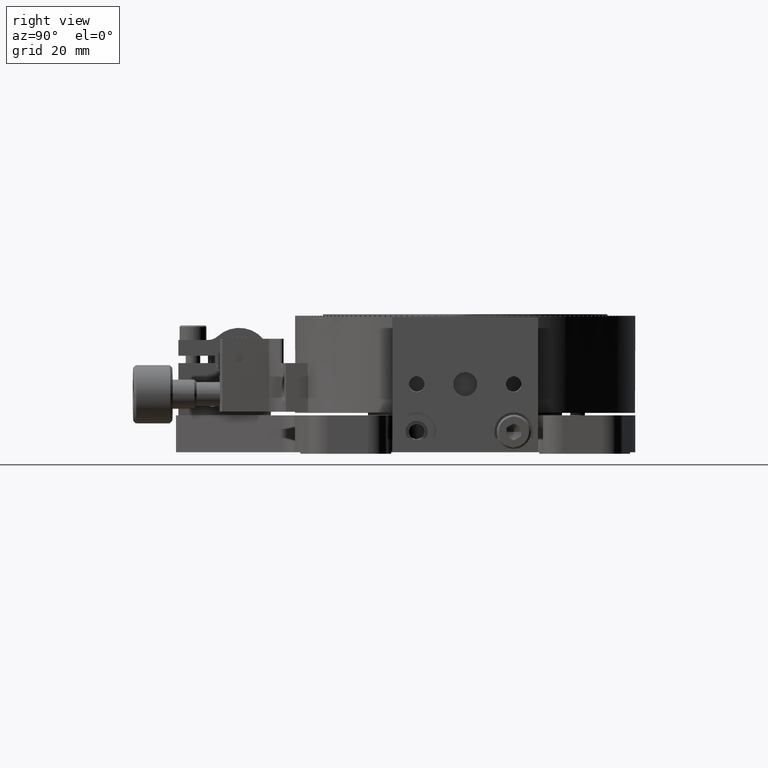
[diagram: clean part render]
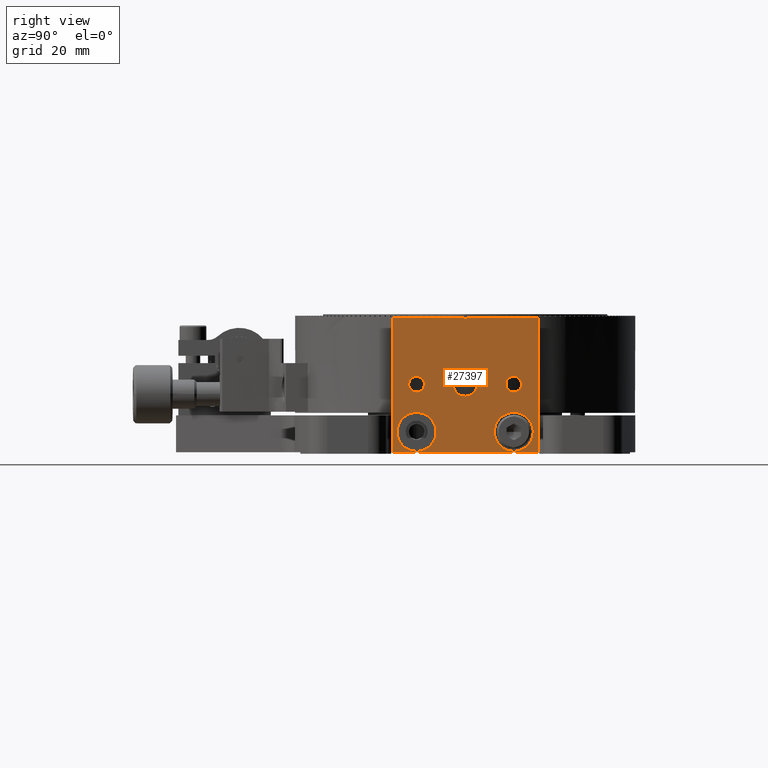
[diagram: same view with one face highlighted and labeled with its STEP entity id]
A machine part, right view. The second image highlights one B-rep face of the part: STEP entity #27397.
In plain terms, the highlighted face is a freeform B-spline surface patch.
Its self-contained STEP definition (entity closure, byte-faithful):
#613=FACE_BOUND('',#32128,.T.);
#614=FACE_BOUND('',#32129,.T.);
#615=FACE_BOUND('',#32130,.T.);
#616=FACE_BOUND('',#32131,.T.);
#617=FACE_BOUND('',#32132,.T.);
#2499=(
BOUNDED_CURVE()
B_SPLINE_CURVE(2,(#160805,#160806,#160807,#160808,#160809),
 .UNSPECIFIED.,.F.,.F.)
B_SPLINE_CURVE_WITH_KNOTS((3,2,3),(0.,3.86180276942525,7.72360553885051),
 .UNSPECIFIED.)
CURVE()
GEOMETRIC_REPRESENTATION_ITEM()
RATIONAL_B_SPLINE_CURVE((1.,0.707106781186548,1.,0.707106781186548,1.))
REPRESENTATION_ITEM('')
);
#2500=(
BOUNDED_CURVE()
B_SPLINE_CURVE(2,(#160810,#160811,#160812,#160813,#160814),
 .UNSPECIFIED.,.F.,.F.)
B_SPLINE_CURVE_WITH_KNOTS((3,2,3),(0.,3.86180276942525,7.72360553885051),
 .UNSPECIFIED.)
CURVE()
GEOMETRIC_REPRESENTATION_ITEM()
RATIONAL_B_SPLINE_CURVE((1.,0.707106781186548,1.,0.707106781186548,1.))
REPRESENTATION_ITEM('')
);
#2501=(
BOUNDED_CURVE()
B_SPLINE_CURVE(2,(#160815,#160816,#160817,#160818,#160819),
 .UNSPECIFIED.,.F.,.F.)
B_SPLINE_CURVE_WITH_KNOTS((3,2,3),(0.,3.86180276942525,7.72360553885051),
 .UNSPECIFIED.)
CURVE()
GEOMETRIC_REPRESENTATION_ITEM()
RATIONAL_B_SPLINE_CURVE((1.,0.707106781186548,1.,0.707106781186548,1.))
REPRESENTATION_ITEM('')
);
#2502=(
BOUNDED_CURVE()
B_SPLINE_CURVE(2,(#160820,#160821,#160822,#160823,#160824),
 .UNSPECIFIED.,.F.,.F.)
B_SPLINE_CURVE_WITH_KNOTS((3,2,3),(0.,3.86180276942525,7.72360553885051),
 .UNSPECIFIED.)
CURVE()
GEOMETRIC_REPRESENTATION_ITEM()
RATIONAL_B_SPLINE_CURVE((1.,0.707106781186548,1.,0.707106781186548,1.))
REPRESENTATION_ITEM('')
);
#2503=(
BOUNDED_CURVE()
B_SPLINE_CURVE(2,(#160825,#160826,#160827,#160828,#160829),
 .UNSPECIFIED.,.F.,.F.)
B_SPLINE_CURVE_WITH_KNOTS((3,2,3),(0.,2.54626114927251,5.09252169146906),
 .UNSPECIFIED.)
CURVE()
GEOMETRIC_REPRESENTATION_ITEM()
RATIONAL_B_SPLINE_CURVE((1.,0.707106781186548,1.,0.707106900395835,1.))
REPRESENTATION_ITEM('')
);
#2504=(
BOUNDED_CURVE()
B_SPLINE_CURVE(2,(#160830,#160831,#160832,#160833,#160834),
 .UNSPECIFIED.,.F.,.F.)
B_SPLINE_CURVE_WITH_KNOTS((3,2,3),(0.,2.54626114927251,5.09252169146906),
 .UNSPECIFIED.)
CURVE()
GEOMETRIC_REPRESENTATION_ITEM()
RATIONAL_B_SPLINE_CURVE((1.,0.707106781186548,1.,0.707106900395835,1.))
REPRESENTATION_ITEM('')
);
#2505=(
BOUNDED_CURVE()
B_SPLINE_CURVE(2,(#160835,#160836,#160837,#160838,#160839),
 .UNSPECIFIED.,.F.,.F.)
B_SPLINE_CURVE_WITH_KNOTS((3,2,3),(0.,2.54626054219655,5.09252169146906),
 .UNSPECIFIED.)
CURVE()
GEOMETRIC_REPRESENTATION_ITEM()
RATIONAL_B_SPLINE_CURVE((1.,0.707106900395835,1.,0.707106781186548,1.))
REPRESENTATION_ITEM('')
);
#2506=(
BOUNDED_CURVE()
B_SPLINE_CURVE(2,(#160840,#160841,#160842,#160843,#160844),
 .UNSPECIFIED.,.F.,.F.)
B_SPLINE_CURVE_WITH_KNOTS((3,2,3),(0.,2.54626054219655,5.09252169146906),
 .UNSPECIFIED.)
CURVE()
GEOMETRIC_REPRESENTATION_ITEM()
RATIONAL_B_SPLINE_CURVE((1.,0.707106900395835,1.,0.707106781186548,1.))
REPRESENTATION_ITEM('')
);
#2507=(
BOUNDED_CURVE()
B_SPLINE_CURVE(2,(#160845,#160846,#160847,#160848,#160849),
 .UNSPECIFIED.,.F.,.F.)
B_SPLINE_CURVE_WITH_KNOTS((3,2,3),(0.,2.54626084573453,5.09252169146906),
 .UNSPECIFIED.)
CURVE()
GEOMETRIC_REPRESENTATION_ITEM()
RATIONAL_B_SPLINE_CURVE((1.,0.707106781186548,1.,0.707106781186548,1.))
REPRESENTATION_ITEM('')
);
#2508=(
BOUNDED_CURVE()
B_SPLINE_CURVE(2,(#160850,#160851,#160852,#160853,#160854),
 .UNSPECIFIED.,.F.,.F.)
B_SPLINE_CURVE_WITH_KNOTS((3,2,3),(0.,2.54626084573453,5.09252169146906),
 .UNSPECIFIED.)
CURVE()
GEOMETRIC_REPRESENTATION_ITEM()
RATIONAL_B_SPLINE_CURVE((1.,0.707106781186548,1.,0.707106781186548,1.))
REPRESENTATION_ITEM('')
);
#2509=(
BOUNDED_CURVE()
B_SPLINE_CURVE(2,(#160855,#160856,#160857,#160858,#160859),
 .UNSPECIFIED.,.F.,.F.)
B_SPLINE_CURVE_WITH_KNOTS((3,2,3),(0.,2.54626084573453,5.09252169146906),
 .UNSPECIFIED.)
CURVE()
GEOMETRIC_REPRESENTATION_ITEM()
RATIONAL_B_SPLINE_CURVE((1.,0.707106781186548,1.,0.707106781186548,1.))
REPRESENTATION_ITEM('')
);
#2510=(
BOUNDED_CURVE()
B_SPLINE_CURVE(2,(#160860,#160861,#160862,#160863,#160864),
 .UNSPECIFIED.,.F.,.F.)
B_SPLINE_CURVE_WITH_KNOTS((3,2,3),(0.,2.54626084573453,5.09252169146906),
 .UNSPECIFIED.)
CURVE()
GEOMETRIC_REPRESENTATION_ITEM()
RATIONAL_B_SPLINE_CURVE((1.,0.707106781186548,1.,0.707106781186548,1.))
REPRESENTATION_ITEM('')
);
#2511=(
BOUNDED_CURVE()
B_SPLINE_CURVE(2,(#160865,#160866,#160867,#160868,#160869),
 .UNSPECIFIED.,.F.,.F.)
B_SPLINE_CURVE_WITH_KNOTS((3,2,3),(0.,6.28318530717959,12.5663706143592),
 .UNSPECIFIED.)
CURVE()
GEOMETRIC_REPRESENTATION_ITEM()
RATIONAL_B_SPLINE_CURVE((1.,0.707106781186548,1.,0.707106781186548,1.))
REPRESENTATION_ITEM('')
);
#2512=(
BOUNDED_CURVE()
B_SPLINE_CURVE(2,(#160870,#160871,#160872,#160873,#160874),
 .UNSPECIFIED.,.F.,.F.)
B_SPLINE_CURVE_WITH_KNOTS((3,2,3),(0.,6.28318530717959,12.5663706143592),
 .UNSPECIFIED.)
CURVE()
GEOMETRIC_REPRESENTATION_ITEM()
RATIONAL_B_SPLINE_CURVE((1.,0.707106781186548,1.,0.707106781186548,1.))
REPRESENTATION_ITEM('')
);
#2513=(
BOUNDED_CURVE()
B_SPLINE_CURVE(2,(#160875,#160876,#160877,#160878,#160879),
 .UNSPECIFIED.,.F.,.F.)
B_SPLINE_CURVE_WITH_KNOTS((3,2,3),(0.,6.28318530717959,12.5663706143592),
 .UNSPECIFIED.)
CURVE()
GEOMETRIC_REPRESENTATION_ITEM()
RATIONAL_B_SPLINE_CURVE((1.,0.707106781186548,1.,0.707106781186548,1.))
REPRESENTATION_ITEM('')
);
#2514=(
BOUNDED_CURVE()
B_SPLINE_CURVE(2,(#160880,#160881,#160882,#160883,#160884),
 .UNSPECIFIED.,.F.,.F.)
B_SPLINE_CURVE_WITH_KNOTS((3,2,3),(0.,6.28318530717959,12.5663706143592),
 .UNSPECIFIED.)
CURVE()
GEOMETRIC_REPRESENTATION_ITEM()
RATIONAL_B_SPLINE_CURVE((1.,0.707106781186548,1.,0.707106781186548,1.))
REPRESENTATION_ITEM('')
);
#2515=(
BOUNDED_CURVE()
B_SPLINE_CURVE(2,(#160885,#160886,#160887,#160888,#160889),
 .UNSPECIFIED.,.F.,.F.)
B_SPLINE_CURVE_WITH_KNOTS((3,2,3),(0.,6.28318605619373,12.5663706143592),
 .UNSPECIFIED.)
CURVE()
GEOMETRIC_REPRESENTATION_ITEM()
RATIONAL_B_SPLINE_CURVE((1.,0.707106781186548,1.,0.707106900395835,1.))
REPRESENTATION_ITEM('')
);
#2516=(
BOUNDED_CURVE()
B_SPLINE_CURVE(2,(#160890,#160891,#160892,#160893,#160894),
 .UNSPECIFIED.,.F.,.F.)
B_SPLINE_CURVE_WITH_KNOTS((3,2,3),(0.,6.28318605619373,12.5663706143592),
 .UNSPECIFIED.)
CURVE()
GEOMETRIC_REPRESENTATION_ITEM()
RATIONAL_B_SPLINE_CURVE((1.,0.707106781186548,1.,0.707106900395835,1.))
REPRESENTATION_ITEM('')
);
#2517=(
BOUNDED_CURVE()
B_SPLINE_CURVE(2,(#160895,#160896,#160897,#160898,#160899),
 .UNSPECIFIED.,.F.,.F.)
B_SPLINE_CURVE_WITH_KNOTS((3,2,3),(0.,6.28318455816544,12.5663706143592),
 .UNSPECIFIED.)
CURVE()
GEOMETRIC_REPRESENTATION_ITEM()
RATIONAL_B_SPLINE_CURVE((1.,0.707106900395835,1.,0.707106781186548,1.))
REPRESENTATION_ITEM('')
);
#2518=(
BOUNDED_CURVE()
B_SPLINE_CURVE(2,(#160900,#160901,#160902,#160903,#160904),
 .UNSPECIFIED.,.F.,.F.)
B_SPLINE_CURVE_WITH_KNOTS((3,2,3),(0.,6.28318455816544,12.5663706143592),
 .UNSPECIFIED.)
CURVE()
GEOMETRIC_REPRESENTATION_ITEM()
RATIONAL_B_SPLINE_CURVE((1.,0.707106900395835,1.,0.707106781186548,1.))
REPRESENTATION_ITEM('')
);
#27397=ADVANCED_FACE('',(#29727,#613,#614,#615,#616,#617),#129705,.T.);
#29727=FACE_OUTER_BOUND('',#32127,.T.);
#32127=EDGE_LOOP('',(#37175,#37176,#37177,#37178,#37179,#37180,#37181,#37182));
#32128=EDGE_LOOP('',(#37183,#37184));
#32129=EDGE_LOOP('',(#37185,#37186));
#32130=EDGE_LOOP('',(#37187,#37188));
#32131=EDGE_LOOP('',(#37189,#37190));
#32132=EDGE_LOOP('',(#37191,#37192));
#37175=ORIENTED_EDGE('',*,*,#86897,.T.);
#37176=ORIENTED_EDGE('',*,*,#86898,.T.);
#37177=ORIENTED_EDGE('',*,*,#86899,.T.);
#37178=ORIENTED_EDGE('',*,*,#86900,.T.);
#37179=ORIENTED_EDGE('',*,*,#86901,.T.);
#37180=ORIENTED_EDGE('',*,*,#86902,.T.);
#37181=ORIENTED_EDGE('',*,*,#86903,.T.);
#37182=ORIENTED_EDGE('',*,*,#86904,.T.);
#37183=ORIENTED_EDGE('',*,*,#86905,.T.);
#37184=ORIENTED_EDGE('',*,*,#86906,.T.);
#37185=ORIENTED_EDGE('',*,*,#86907,.T.);
#37186=ORIENTED_EDGE('',*,*,#86908,.T.);
#37187=ORIENTED_EDGE('',*,*,#86909,.T.);
#37188=ORIENTED_EDGE('',*,*,#86910,.T.);
#37189=ORIENTED_EDGE('',*,*,#86911,.T.);
#37190=ORIENTED_EDGE('',*,*,#86912,.T.);
#37191=ORIENTED_EDGE('',*,*,#86913,.T.);
#37192=ORIENTED_EDGE('',*,*,#86914,.T.);
#49849=PCURVE('',#129705,#62523);
#49850=PCURVE('',#129705,#62524);
#49851=PCURVE('',#129705,#62525);
#49852=PCURVE('',#129705,#62526);
#49853=PCURVE('',#129705,#62527);
#49854=PCURVE('',#129705,#62528);
#49855=PCURVE('',#129705,#62529);
#49856=PCURVE('',#129705,#62530);
#49857=PCURVE('',#129705,#62531);
#49858=PCURVE('',#129705,#62532);
#49859=PCURVE('',#129705,#62533);
#49860=PCURVE('',#129705,#62534);
#49861=PCURVE('',#129705,#62535);
#49862=PCURVE('',#129705,#62536);
#49863=PCURVE('',#129705,#62537);
#49864=PCURVE('',#129705,#62538);
#49865=PCURVE('',#129705,#62539);
#49866=PCURVE('',#129705,#62540);
#62523=DEFINITIONAL_REPRESENTATION('',(#100299),#230981);
#62524=DEFINITIONAL_REPRESENTATION('',(#100301),#230981);
#62525=DEFINITIONAL_REPRESENTATION('',(#100303),#230981);
#62526=DEFINITIONAL_REPRESENTATION('',(#100305),#230981);
#62527=DEFINITIONAL_REPRESENTATION('',(#100307),#230981);
#62528=DEFINITIONAL_REPRESENTATION('',(#100309),#230981);
#62529=DEFINITIONAL_REPRESENTATION('',(#100311),#230981);
#62530=DEFINITIONAL_REPRESENTATION('',(#100313),#230981);
#62531=DEFINITIONAL_REPRESENTATION('',(#2500),#230981);
#62532=DEFINITIONAL_REPRESENTATION('',(#2502),#230981);
#62533=DEFINITIONAL_REPRESENTATION('',(#2504),#230981);
#62534=DEFINITIONAL_REPRESENTATION('',(#2506),#230981);
#62535=DEFINITIONAL_REPRESENTATION('',(#2508),#230981);
#62536=DEFINITIONAL_REPRESENTATION('',(#2510),#230981);
#62537=DEFINITIONAL_REPRESENTATION('',(#2512),#230981);
#62538=DEFINITIONAL_REPRESENTATION('',(#2514),#230981);
#62539=DEFINITIONAL_REPRESENTATION('',(#2516),#230981);
#62540=DEFINITIONAL_REPRESENTATION('',(#2518),#230981);
#74797=SURFACE_CURVE('',#100298,(#49849),.PCURVE_S1.);
#74798=SURFACE_CURVE('',#100300,(#49850),.PCURVE_S1.);
#74799=SURFACE_CURVE('',#100302,(#49851),.PCURVE_S1.);
#74800=SURFACE_CURVE('',#100304,(#49852),.PCURVE_S1.);
#74801=SURFACE_CURVE('',#100306,(#49853),.PCURVE_S1.);
#74802=SURFACE_CURVE('',#100308,(#49854),.PCURVE_S1.);
#74803=SURFACE_CURVE('',#100310,(#49855),.PCURVE_S1.);
#74804=SURFACE_CURVE('',#100312,(#49856),.PCURVE_S1.);
#74805=SURFACE_CURVE('',#2499,(#49857),.PCURVE_S1.);
#74806=SURFACE_CURVE('',#2501,(#49858),.PCURVE_S1.);
#74807=SURFACE_CURVE('',#2503,(#49859),.PCURVE_S1.);
#74808=SURFACE_CURVE('',#2505,(#49860),.PCURVE_S1.);
#74809=SURFACE_CURVE('',#2507,(#49861),.PCURVE_S1.);
#74810=SURFACE_CURVE('',#2509,(#49862),.PCURVE_S1.);
#74811=SURFACE_CURVE('',#2511,(#49863),.PCURVE_S1.);
#74812=SURFACE_CURVE('',#2513,(#49864),.PCURVE_S1.);
#74813=SURFACE_CURVE('',#2515,(#49865),.PCURVE_S1.);
#74814=SURFACE_CURVE('',#2517,(#49866),.PCURVE_S1.);
#86897=EDGE_CURVE('',#120244,#120245,#74797,.T.);
#86898=EDGE_CURVE('',#120245,#120246,#74798,.T.);
#86899=EDGE_CURVE('',#120246,#120247,#74799,.T.);
#86900=EDGE_CURVE('',#120247,#120248,#74800,.T.);
#86901=EDGE_CURVE('',#120248,#120249,#74801,.T.);
#86902=EDGE_CURVE('',#120249,#120250,#74802,.T.);
#86903=EDGE_CURVE('',#120250,#120251,#74803,.T.);
#86904=EDGE_CURVE('',#120251,#120244,#74804,.T.);
#86905=EDGE_CURVE('',#120253,#120252,#74805,.T.);
#86906=EDGE_CURVE('',#120252,#120253,#74806,.T.);
#86907=EDGE_CURVE('',#120255,#120254,#74807,.T.);
#86908=EDGE_CURVE('',#120254,#120255,#74808,.T.);
#86909=EDGE_CURVE('',#120257,#120256,#74809,.T.);
#86910=EDGE_CURVE('',#120256,#120257,#74810,.T.);
#86911=EDGE_CURVE('',#120259,#120258,#74811,.T.);
#86912=EDGE_CURVE('',#120258,#120259,#74812,.T.);
#86913=EDGE_CURVE('',#120261,#120260,#74813,.T.);
#86914=EDGE_CURVE('',#120260,#120261,#74814,.T.);
#100298=B_SPLINE_CURVE_WITH_KNOTS('',1,(#160773,#160774),.UNSPECIFIED.,
 .F.,.F.,(2,2),(0.,14.8000000000001),.UNSPECIFIED.);
#100299=B_SPLINE_CURVE_WITH_KNOTS('',1,(#160775,#160776),.UNSPECIFIED.,
 .F.,.F.,(2,2),(0.,14.8000000000001),.UNSPECIFIED.);
#100300=B_SPLINE_CURVE_WITH_KNOTS('',1,(#160777,#160778),.UNSPECIFIED.,
 .F.,.F.,(2,2),(-27.8,0.),.UNSPECIFIED.);
#100301=B_SPLINE_CURVE_WITH_KNOTS('',1,(#160779,#160780),.UNSPECIFIED.,
 .F.,.F.,(2,2),(-27.8,0.),.UNSPECIFIED.);
#100302=B_SPLINE_CURVE_WITH_KNOTS('',1,(#160781,#160782),.UNSPECIFIED.,
 .F.,.F.,(2,2),(0.,30.0000000000001),.UNSPECIFIED.);
#100303=B_SPLINE_CURVE_WITH_KNOTS('',1,(#160783,#160784),.UNSPECIFIED.,
 .F.,.F.,(2,2),(0.,30.0000000000001),.UNSPECIFIED.);
#100304=B_SPLINE_CURVE_WITH_KNOTS('',1,(#160785,#160786),.UNSPECIFIED.,
 .F.,.F.,(2,2),(0.,27.8),.UNSPECIFIED.);
#100305=B_SPLINE_CURVE_WITH_KNOTS('',1,(#160787,#160788),.UNSPECIFIED.,
 .F.,.F.,(2,2),(0.,27.8),.UNSPECIFIED.);
#100306=B_SPLINE_CURVE_WITH_KNOTS('',1,(#160789,#160790),.UNSPECIFIED.,
 .F.,.F.,(2,2),(0.,14.8),.UNSPECIFIED.);
#100307=B_SPLINE_CURVE_WITH_KNOTS('',1,(#160791,#160792),.UNSPECIFIED.,
 .F.,.F.,(2,2),(0.,14.8),.UNSPECIFIED.);
#100308=B_SPLINE_CURVE_WITH_KNOTS('',1,(#160793,#160794),.UNSPECIFIED.,
 .F.,.F.,(2,2),(-0.299999999999997,0.),.UNSPECIFIED.);
#100309=B_SPLINE_CURVE_WITH_KNOTS('',1,(#160795,#160796),.UNSPECIFIED.,
 .F.,.F.,(2,2),(-0.299999999999997,0.),.UNSPECIFIED.);
#100310=B_SPLINE_CURVE_WITH_KNOTS('',1,(#160797,#160798),.UNSPECIFIED.,
 .F.,.F.,(2,2),(-0.399999999999999,0.),.UNSPECIFIED.);
#100311=B_SPLINE_CURVE_WITH_KNOTS('',1,(#160799,#160800),.UNSPECIFIED.,
 .F.,.F.,(2,2),(-0.399999999999999,0.),.UNSPECIFIED.);
#100312=B_SPLINE_CURVE_WITH_KNOTS('',1,(#160801,#160802),.UNSPECIFIED.,
 .F.,.F.,(2,2),(0.,0.299999999999997),.UNSPECIFIED.);
#100313=B_SPLINE_CURVE_WITH_KNOTS('',1,(#160803,#160804),.UNSPECIFIED.,
 .F.,.F.,(2,2),(0.,0.299999999999997),.UNSPECIFIED.);
#120244=VERTEX_POINT('',#160755);
#120245=VERTEX_POINT('',#160756);
#120246=VERTEX_POINT('',#160757);
#120247=VERTEX_POINT('',#160758);
#120248=VERTEX_POINT('',#160759);
#120249=VERTEX_POINT('',#160760);
#120250=VERTEX_POINT('',#160761);
#120251=VERTEX_POINT('',#160762);
#120252=VERTEX_POINT('',#160763);
#120253=VERTEX_POINT('',#160764);
#120254=VERTEX_POINT('',#160765);
#120255=VERTEX_POINT('',#160766);
#120256=VERTEX_POINT('',#160767);
#120257=VERTEX_POINT('',#160768);
#120258=VERTEX_POINT('',#160769);
#120259=VERTEX_POINT('',#160770);
#120260=VERTEX_POINT('',#160771);
#120261=VERTEX_POINT('',#160772);
#129705=B_SPLINE_SURFACE_WITH_KNOTS('',1,1,((#160751,#160752),(#160753,
#160754)),.UNSPECIFIED.,.F.,.F.,.F.,(2,2),(2,2),(-23.016,10.416),(-33.0360000000001,
3.03600000000001),.UNSPECIFIED.);
#160751=CARTESIAN_POINT('',(88.49963373605,-53.0359999999999,49.0113598283897));
#160752=CARTESIAN_POINT('',(88.49963373605,-16.9639999999998,49.0113598283897));
#160753=CARTESIAN_POINT('',(88.49963373605,-53.0359999999999,15.5793598283897));
#160754=CARTESIAN_POINT('',(88.49963373605,-16.9639999999998,15.5793598283897));
#160755=CARTESIAN_POINT('',(88.49963373605,-35.1999999999998,46.1953598283897));
#160756=CARTESIAN_POINT('',(88.49963373605,-49.9999999999999,46.1953598283897));
#160757=CARTESIAN_POINT('',(88.49963373605,-49.9999999999999,18.3953598283897));
#160758=CARTESIAN_POINT('',(88.49963373605,-19.9999999999998,18.3953598283897));
#160759=CARTESIAN_POINT('',(88.49963373605,-19.9999999999998,46.1953598283897));
#160760=CARTESIAN_POINT('',(88.49963373605,-34.7999999999998,46.1953598283897));
#160761=CARTESIAN_POINT('',(88.49963373605,-34.7999999999998,45.8953598283897));
#160762=CARTESIAN_POINT('',(88.49963373605,-35.1999999999998,45.8953598283897));
#160763=CARTESIAN_POINT('',(88.49963373605,-32.5414999999999,32.3953598283897));
#160764=CARTESIAN_POINT('',(88.49963373605,-37.4584999999999,32.3953598283897));
#160765=CARTESIAN_POINT('',(88.49963373605,-45.,30.7743598283897));
#160766=CARTESIAN_POINT('',(88.49963373605,-44.9999999999999,34.0163598283897));
#160767=CARTESIAN_POINT('',(88.49963373605,-24.9999999999999,30.7743598283897));
#160768=CARTESIAN_POINT('',(88.49963373605,-24.9999999999999,34.0163598283897));
#160769=CARTESIAN_POINT('',(88.49963373605,-44.9999999999999,18.5953598283897));
#160770=CARTESIAN_POINT('',(88.49963373605,-44.9999999999999,26.5953598283897));
#160771=CARTESIAN_POINT('',(88.49963373605,-25.,18.5953598283897));
#160772=CARTESIAN_POINT('',(88.49963373605,-24.9999999999999,26.5953598283897));
#160773=CARTESIAN_POINT('',(88.49963373605,-35.1999999999998,46.1953598283897));
#160774=CARTESIAN_POINT('',(88.49963373605,-49.9999999999999,46.1953598283897));
#160775=CARTESIAN_POINT('',(-20.2,-15.2));
#160776=CARTESIAN_POINT('',(-20.2,-30.0000000000001));
#160777=CARTESIAN_POINT('',(88.49963373605,-49.9999999999999,46.1953598283897));
#160778=CARTESIAN_POINT('',(88.49963373605,-49.9999999999999,18.3953598283897));
#160779=CARTESIAN_POINT('',(-20.2,-30.0000000000001));
#160780=CARTESIAN_POINT('',(7.6,-30.0000000000001));
#160781=CARTESIAN_POINT('',(88.49963373605,-49.9999999999999,18.3953598283897));
#160782=CARTESIAN_POINT('',(88.49963373605,-19.9999999999998,18.3953598283897));
#160783=CARTESIAN_POINT('',(7.6,-30.0000000000001));
#160784=CARTESIAN_POINT('',(7.6,-4.82103059876111E-30));
#160785=CARTESIAN_POINT('',(88.49963373605,-19.9999999999998,18.3953598283897));
#160786=CARTESIAN_POINT('',(88.49963373605,-19.9999999999998,46.1953598283897));
#160787=CARTESIAN_POINT('',(7.6,-4.82103059876111E-30));
#160788=CARTESIAN_POINT('',(-20.2,1.28137918546019E-29));
#160789=CARTESIAN_POINT('',(88.49963373605,-19.9999999999998,46.1953598283897));
#160790=CARTESIAN_POINT('',(88.49963373605,-34.7999999999998,46.1953598283897));
#160791=CARTESIAN_POINT('',(-20.2,1.28137918546019E-29));
#160792=CARTESIAN_POINT('',(-20.2,-14.8));
#160793=CARTESIAN_POINT('',(88.49963373605,-34.7999999999998,46.1953598283897));
#160794=CARTESIAN_POINT('',(88.49963373605,-34.7999999999998,45.8953598283897));
#160795=CARTESIAN_POINT('',(-20.2,-14.8));
#160796=CARTESIAN_POINT('',(-19.9,-14.8));
#160797=CARTESIAN_POINT('',(88.49963373605,-34.7999999999998,45.8953598283897));
#160798=CARTESIAN_POINT('',(88.49963373605,-35.1999999999998,45.8953598283897));
#160799=CARTESIAN_POINT('',(-19.9,-14.8));
#160800=CARTESIAN_POINT('',(-19.9,-15.2));
#160801=CARTESIAN_POINT('',(88.49963373605,-35.1999999999998,45.8953598283897));
#160802=CARTESIAN_POINT('',(88.49963373605,-35.1999999999998,46.1953598283897));
#160803=CARTESIAN_POINT('',(-19.9,-15.2));
#160804=CARTESIAN_POINT('',(-20.2,-15.2));
#160805=CARTESIAN_POINT('',(88.49963373605,-37.4584999999999,32.3953598283897));
#160806=CARTESIAN_POINT('',(88.49963373605,-37.4584999999999,34.8538598283897));
#160807=CARTESIAN_POINT('',(88.49963373605,-34.9999999999999,34.8538598283897));
#160808=CARTESIAN_POINT('',(88.49963373605,-32.5414999999999,34.8538598283897));
#160809=CARTESIAN_POINT('',(88.49963373605,-32.5414999999999,32.3953598283897));
#160810=CARTESIAN_POINT('',(-6.4,-17.4585000000001));
#160811=CARTESIAN_POINT('',(-8.85850000000001,-17.4585000000001));
#160812=CARTESIAN_POINT('',(-8.8585,-15.0000000000001));
#160813=CARTESIAN_POINT('',(-8.85850000000001,-12.5415000000001));
#160814=CARTESIAN_POINT('',(-6.4,-12.5415000000001));
#160815=CARTESIAN_POINT('',(88.49963373605,-32.5414999999999,32.3953598283897));
#160816=CARTESIAN_POINT('',(88.49963373605,-32.5414999999999,29.9368598283897));
#160817=CARTESIAN_POINT('',(88.49963373605,-34.9999999999999,29.9368598283897));
#160818=CARTESIAN_POINT('',(88.49963373605,-37.4584999999999,29.9368598283897));
#160819=CARTESIAN_POINT('',(88.49963373605,-37.4584999999999,32.3953598283897));
#160820=CARTESIAN_POINT('',(-6.4,-12.5415000000001));
#160821=CARTESIAN_POINT('',(-3.9415,-12.5415000000001));
#160822=CARTESIAN_POINT('',(-3.9415,-15.0000000000001));
#160823=CARTESIAN_POINT('',(-3.9415,-17.4585000000001));
#160824=CARTESIAN_POINT('',(-6.4,-17.4585000000001));
#160825=CARTESIAN_POINT('',(88.49963373605,-44.9999999999999,34.0163598283897));
#160826=CARTESIAN_POINT('',(88.49963373605,-43.3789999999998,34.0163598283896));
#160827=CARTESIAN_POINT('',(88.49963373605,-43.3789999999999,32.3953598283896));
#160828=CARTESIAN_POINT('',(88.49963373605,-43.379,30.7743603749499));
#160829=CARTESIAN_POINT('',(88.49963373605,-45.,30.7743598283897));
#160830=CARTESIAN_POINT('',(-8.021,-25.0000000000001));
#160831=CARTESIAN_POINT('',(-8.02099999999991,-23.379));
#160832=CARTESIAN_POINT('',(-6.3999999999999,-23.3790000000001));
#160833=CARTESIAN_POINT('',(-4.77900054656018,-23.3790000000002));
#160834=CARTESIAN_POINT('',(-4.779,-25.0000000000001));
#160835=CARTESIAN_POINT('',(88.49963373605,-45.,30.7743598283897));
#160836=CARTESIAN_POINT('',(88.49963373605,-46.6209999999999,30.77436037495));
#160837=CARTESIAN_POINT('',(88.49963373605,-46.6209999999999,32.3953598283897));
#160838=CARTESIAN_POINT('',(88.49963373605,-46.6209999999999,34.0163598283897));
#160839=CARTESIAN_POINT('',(88.49963373605,-44.9999999999999,34.0163598283897));
#160840=CARTESIAN_POINT('',(-4.779,-25.0000000000001));
#160841=CARTESIAN_POINT('',(-4.77900054656028,-26.6210000000001));
#160842=CARTESIAN_POINT('',(-6.4,-26.6210000000001));
#160843=CARTESIAN_POINT('',(-8.02100000000001,-26.6210000000001));
#160844=CARTESIAN_POINT('',(-8.021,-25.0000000000001));
#160845=CARTESIAN_POINT('',(88.49963373605,-24.9999999999999,34.0163598283897));
#160846=CARTESIAN_POINT('',(88.49963373605,-23.3789999999999,34.0163598283897));
#160847=CARTESIAN_POINT('',(88.49963373605,-23.3789999999999,32.3953598283897));
#160848=CARTESIAN_POINT('',(88.49963373605,-23.3789999999999,30.7743598283897));
#160849=CARTESIAN_POINT('',(88.49963373605,-24.9999999999999,30.7743598283897));
#160850=CARTESIAN_POINT('',(-8.021,-5.0000000000001));
#160851=CARTESIAN_POINT('',(-8.02100000000001,-3.3790000000001));
#160852=CARTESIAN_POINT('',(-6.4,-3.3790000000001));
#160853=CARTESIAN_POINT('',(-4.77900000000001,-3.3790000000001));
#160854=CARTESIAN_POINT('',(-4.779,-5.0000000000001));
#160855=CARTESIAN_POINT('',(88.49963373605,-24.9999999999999,30.7743598283897));
#160856=CARTESIAN_POINT('',(88.49963373605,-26.6209999999999,30.7743598283897));
#160857=CARTESIAN_POINT('',(88.49963373605,-26.6209999999999,32.3953598283897));
#160858=CARTESIAN_POINT('',(88.49963373605,-26.6209999999999,34.0163598283897));
#160859=CARTESIAN_POINT('',(88.49963373605,-24.9999999999999,34.0163598283897));
#160860=CARTESIAN_POINT('',(-4.779,-5.0000000000001));
#160861=CARTESIAN_POINT('',(-4.77900000000001,-6.6210000000001));
#160862=CARTESIAN_POINT('',(-6.4,-6.6210000000001));
#160863=CARTESIAN_POINT('',(-8.02100000000001,-6.6210000000001));
#160864=CARTESIAN_POINT('',(-8.021,-5.0000000000001));
#160865=CARTESIAN_POINT('',(88.49963373605,-44.9999999999999,26.5953598283897));
#160866=CARTESIAN_POINT('',(88.49963373605,-40.9999999999999,26.5953598283897));
#160867=CARTESIAN_POINT('',(88.49963373605,-40.9999999999999,22.5953598283897));
#160868=CARTESIAN_POINT('',(88.49963373605,-40.9999999999999,18.5953598283897));
#160869=CARTESIAN_POINT('',(88.49963373605,-44.9999999999999,18.5953598283897));
#160870=CARTESIAN_POINT('',(-0.600000000000001,-25.0000000000001));
#160871=CARTESIAN_POINT('',(-0.600000000000004,-21.0000000000001));
#160872=CARTESIAN_POINT('',(3.4,-21.0000000000001));
#160873=CARTESIAN_POINT('',(7.4,-21.0000000000001));
#160874=CARTESIAN_POINT('',(7.4,-25.0000000000001));
#160875=CARTESIAN_POINT('',(88.49963373605,-44.9999999999999,18.5953598283897));
#160876=CARTESIAN_POINT('',(88.49963373605,-48.9999999999999,18.5953598283897));
#160877=CARTESIAN_POINT('',(88.49963373605,-48.9999999999999,22.5953598283897));
#160878=CARTESIAN_POINT('',(88.49963373605,-48.9999999999999,26.5953598283897));
#160879=CARTESIAN_POINT('',(88.49963373605,-44.9999999999999,26.5953598283897));
#160880=CARTESIAN_POINT('',(7.4,-25.0000000000001));
#160881=CARTESIAN_POINT('',(7.4,-29.0000000000001));
#160882=CARTESIAN_POINT('',(3.4,-29.0000000000001));
#160883=CARTESIAN_POINT('',(-0.599999999999999,-29.0000000000001));
#160884=CARTESIAN_POINT('',(-0.600000000000001,-25.0000000000001));
#160885=CARTESIAN_POINT('',(88.49963373605,-24.9999999999999,26.5953598283897));
#160886=CARTESIAN_POINT('',(88.49963373605,-20.9999999999998,26.5953598283896));
#160887=CARTESIAN_POINT('',(88.49963373605,-20.9999999999999,22.5953598283896));
#160888=CARTESIAN_POINT('',(88.49963373605,-21.,18.5953611770886));
#160889=CARTESIAN_POINT('',(88.49963373605,-25.,18.5953598283897));
#160890=CARTESIAN_POINT('',(-0.600000000000001,-5.00000000000005));
#160891=CARTESIAN_POINT('',(-0.599999999999903,-0.999999999999995));
#160892=CARTESIAN_POINT('',(3.4000000000001,-1.0000000000001));
#160893=CARTESIAN_POINT('',(7.39999865130108,-1.0000000000002));
#160894=CARTESIAN_POINT('',(7.4,-5.00000000000015));
#160895=CARTESIAN_POINT('',(88.49963373605,-25.,18.5953598283897));
#160896=CARTESIAN_POINT('',(88.49963373605,-28.9999999999999,18.5953611770887));
#160897=CARTESIAN_POINT('',(88.49963373605,-28.9999999999999,22.5953598283897));
#160898=CARTESIAN_POINT('',(88.49963373605,-28.9999999999999,26.5953598283897));
#160899=CARTESIAN_POINT('',(88.49963373605,-24.9999999999999,26.5953598283897));
#160900=CARTESIAN_POINT('',(7.4,-5.00000000000015));
#160901=CARTESIAN_POINT('',(7.39999865130098,-9.0000000000001));
#160902=CARTESIAN_POINT('',(3.4,-9.0000000000001));
#160903=CARTESIAN_POINT('',(-0.599999999999999,-9.0000000000001));
#160904=CARTESIAN_POINT('',(-0.600000000000001,-5.00000000000005));
#230981=(
GEOMETRIC_REPRESENTATION_CONTEXT(2)
PARAMETRIC_REPRESENTATION_CONTEXT()
REPRESENTATION_CONTEXT('pspace','')
);